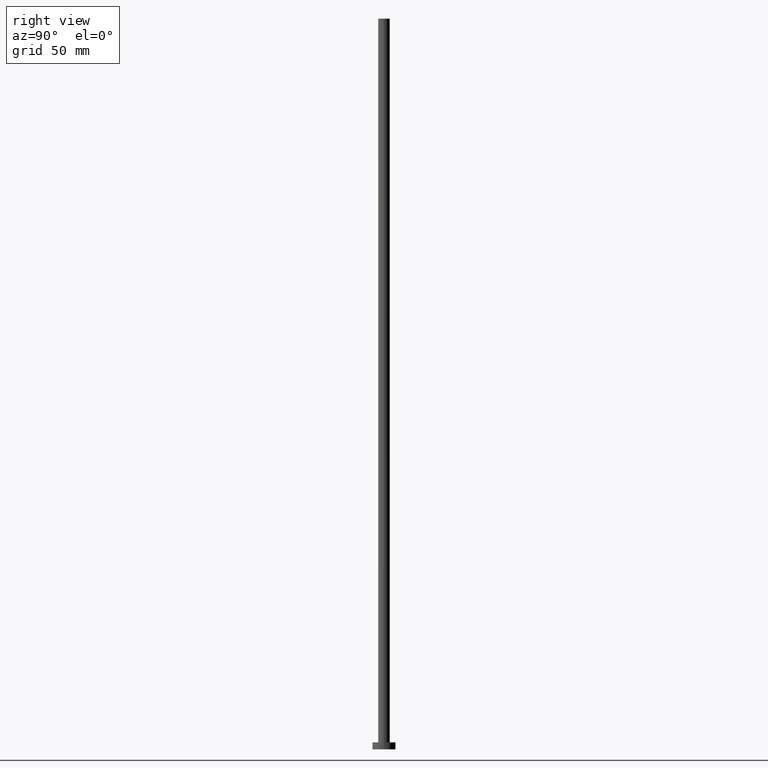
[diagram: clean part render]
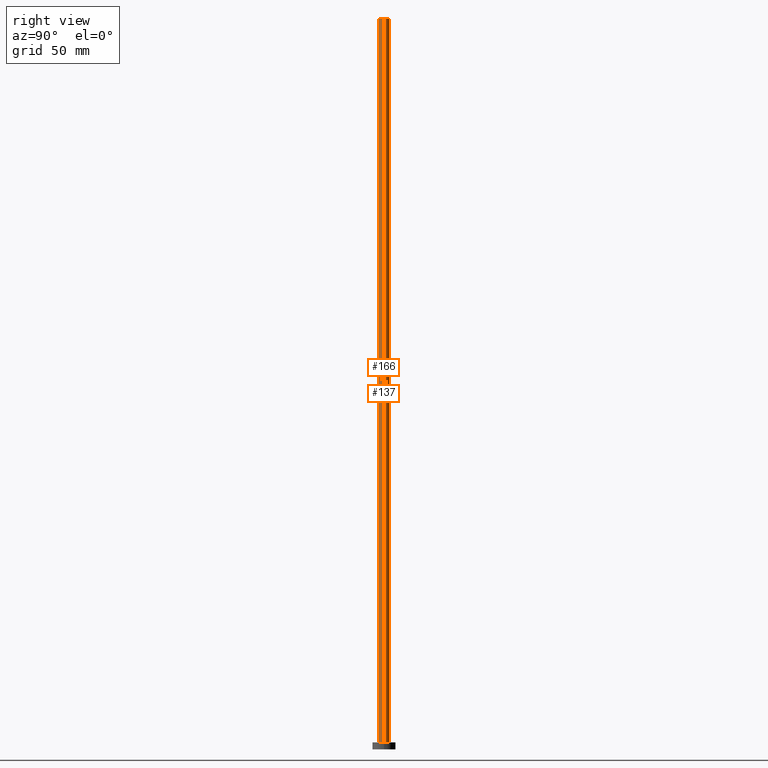
[diagram: same view with one multi-face feature highlighted, each face labeled with its STEP entity id]
A machine part, right view. The highlighted faces form ONE feature: a constant-radius fillet chain: 2 tangent blend faces with common blend radius 2.5 mm. The faces share edges in the B-rep.
Their STEP definitions:
[1] entity #137 (Cylinder):
#1 = EDGE_LOOP ( 'NONE', ( #19, #97, #57, #175 ) ) ;
#3 = AXIS2_PLACEMENT_3D ( 'NONE', #104, #167, #246 ) ;
#18 = EDGE_CURVE ( 'NONE', #59, #178, #112, .T. ) ;
#19 = ORIENTED_EDGE ( 'NONE', *, *, #18, .F. ) ;
#30 = VECTOR ( 'NONE', #192, 1000.000000000000000 ) ;
#32 = EDGE_CURVE ( 'NONE', #178, #234, #126, .T. ) ;
#47 = CARTESIAN_POINT ( 'NONE',  ( 0.000000000000000000, 0.000000000000000000, 315.0000000000000000 ) ) ;
#48 = CARTESIAN_POINT ( 'NONE',  ( 2.500000000000000000, 3.061616997868383141E-16, 315.0000000000000000 ) ) ;
#49 = EDGE_CURVE ( 'NONE', #215, #234, #60, .T. ) ;
#50 = FACE_OUTER_BOUND ( 'NONE', #1, .T. ) ;
#53 = CARTESIAN_POINT ( 'NONE',  ( 0.000000000000000000, 0.000000000000000000, 3.000000000000000000 ) ) ;
#57 = ORIENTED_EDGE ( 'NONE', *, *, #49, .T. ) ;
#59 = VERTEX_POINT ( 'NONE', #48 ) ;
#60 = CIRCLE ( 'NONE', #194, 2.500000000000000000 ) ;
#66 = DIRECTION ( 'NONE',  ( -0.000000000000000000, -0.000000000000000000, -1.000000000000000000 ) ) ;
#67 = DIRECTION ( 'NONE',  ( 1.000000000000000000, 0.000000000000000000, 0.000000000000000000 ) ) ;
#75 = CARTESIAN_POINT ( 'NONE',  ( 2.500000000000000000, 3.061616997868383141E-16, 3.000000000000000000 ) ) ;
#83 = DIRECTION ( 'NONE',  ( 0.000000000000000000, 0.000000000000000000, 1.000000000000000000 ) ) ;
#87 = CYLINDRICAL_SURFACE ( 'NONE', #3, 2.500000000000000000 ) ;
#90 = CARTESIAN_POINT ( 'NONE',  ( -2.500000000000000000, 0.000000000000000000, 3.000000000000000000 ) ) ;
#97 = ORIENTED_EDGE ( 'NONE', *, *, #211, .T. ) ;
#104 = CARTESIAN_POINT ( 'NONE',  ( 0.000000000000000000, 0.000000000000000000, 315.0000000000000000 ) ) ;
#112 = CIRCLE ( 'NONE', #170, 2.500000000000000000 ) ;
#126 = LINE ( 'NONE', #227, #233 ) ;
#137 = ADVANCED_FACE ( 'NONE', ( #50 ), #87, .T. ) ;
#150 = CARTESIAN_POINT ( 'NONE',  ( 2.500000000000000000, 3.061616997868383141E-16, 315.0000000000000000 ) ) ;
#164 = DIRECTION ( 'NONE',  ( 0.000000000000000000, 0.000000000000000000, 1.000000000000000000 ) ) ;
#167 = DIRECTION ( 'NONE',  ( -0.000000000000000000, -0.000000000000000000, -1.000000000000000000 ) ) ;
#170 = AXIS2_PLACEMENT_3D ( 'NONE', #47, #164, #225 ) ;
#171 = LINE ( 'NONE', #150, #30 ) ;
#175 = ORIENTED_EDGE ( 'NONE', *, *, #32, .F. ) ;
#178 = VERTEX_POINT ( 'NONE', #195 ) ;
#192 = DIRECTION ( 'NONE',  ( -0.000000000000000000, -0.000000000000000000, -1.000000000000000000 ) ) ;
#194 = AXIS2_PLACEMENT_3D ( 'NONE', #53, #83, #67 ) ;
#195 = CARTESIAN_POINT ( 'NONE',  ( -2.500000000000000000, 0.000000000000000000, 315.0000000000000000 ) ) ;
#211 = EDGE_CURVE ( 'NONE', #59, #215, #171, .T. ) ;
#215 = VERTEX_POINT ( 'NONE', #75 ) ;
#225 = DIRECTION ( 'NONE',  ( 1.000000000000000000, 0.000000000000000000, 0.000000000000000000 ) ) ;
#227 = CARTESIAN_POINT ( 'NONE',  ( -2.500000000000000000, 0.000000000000000000, 315.0000000000000000 ) ) ;
#233 = VECTOR ( 'NONE', #66, 1000.000000000000000 ) ;
#234 = VERTEX_POINT ( 'NONE', #90 ) ;
#246 = DIRECTION ( 'NONE',  ( -1.000000000000000000, 0.000000000000000000, 0.000000000000000000 ) ) ;
[2] entity #166 (Cylinder):
#7 = DIRECTION ( 'NONE',  ( 0.000000000000000000, 0.000000000000000000, 1.000000000000000000 ) ) ;
#9 = CARTESIAN_POINT ( 'NONE',  ( 0.000000000000000000, 0.000000000000000000, 315.0000000000000000 ) ) ;
#17 = CARTESIAN_POINT ( 'NONE',  ( 0.000000000000000000, 0.000000000000000000, 315.0000000000000000 ) ) ;
#24 = ORIENTED_EDGE ( 'NONE', *, *, #140, .T. ) ;
#27 = AXIS2_PLACEMENT_3D ( 'NONE', #159, #243, #222 ) ;
#30 = VECTOR ( 'NONE', #192, 1000.000000000000000 ) ;
#32 = EDGE_CURVE ( 'NONE', #178, #234, #126, .T. ) ;
#36 = CYLINDRICAL_SURFACE ( 'NONE', #247, 2.500000000000000000 ) ;
#48 = CARTESIAN_POINT ( 'NONE',  ( 2.500000000000000000, 3.061616997868383141E-16, 315.0000000000000000 ) ) ;
#54 = FACE_OUTER_BOUND ( 'NONE', #64, .T. ) ;
#59 = VERTEX_POINT ( 'NONE', #48 ) ;
#64 = EDGE_LOOP ( 'NONE', ( #255, #198, #122, #24 ) ) ;
#66 = DIRECTION ( 'NONE',  ( -0.000000000000000000, -0.000000000000000000, -1.000000000000000000 ) ) ;
#72 = DIRECTION ( 'NONE',  ( -1.000000000000000000, 0.000000000000000000, 0.000000000000000000 ) ) ;
#75 = CARTESIAN_POINT ( 'NONE',  ( 2.500000000000000000, 3.061616997868383141E-16, 3.000000000000000000 ) ) ;
#76 = EDGE_CURVE ( 'NONE', #178, #59, #80, .T. ) ;
#80 = CIRCLE ( 'NONE', #226, 2.500000000000000000 ) ;
#90 = CARTESIAN_POINT ( 'NONE',  ( -2.500000000000000000, 0.000000000000000000, 3.000000000000000000 ) ) ;
#96 = DIRECTION ( 'NONE',  ( -0.000000000000000000, -0.000000000000000000, -1.000000000000000000 ) ) ;
#100 = CIRCLE ( 'NONE', #27, 2.500000000000000000 ) ;
#122 = ORIENTED_EDGE ( 'NONE', *, *, #32, .T. ) ;
#126 = LINE ( 'NONE', #227, #233 ) ;
#140 = EDGE_CURVE ( 'NONE', #234, #215, #100, .T. ) ;
#150 = CARTESIAN_POINT ( 'NONE',  ( 2.500000000000000000, 3.061616997868383141E-16, 315.0000000000000000 ) ) ;
#159 = CARTESIAN_POINT ( 'NONE',  ( 0.000000000000000000, 0.000000000000000000, 3.000000000000000000 ) ) ;
#166 = ADVANCED_FACE ( 'NONE', ( #54 ), #36, .T. ) ;
#171 = LINE ( 'NONE', #150, #30 ) ;
#178 = VERTEX_POINT ( 'NONE', #195 ) ;
#182 = DIRECTION ( 'NONE',  ( 1.000000000000000000, 0.000000000000000000, 0.000000000000000000 ) ) ;
#192 = DIRECTION ( 'NONE',  ( -0.000000000000000000, -0.000000000000000000, -1.000000000000000000 ) ) ;
#195 = CARTESIAN_POINT ( 'NONE',  ( -2.500000000000000000, 0.000000000000000000, 315.0000000000000000 ) ) ;
#198 = ORIENTED_EDGE ( 'NONE', *, *, #76, .F. ) ;
#211 = EDGE_CURVE ( 'NONE', #59, #215, #171, .T. ) ;
#215 = VERTEX_POINT ( 'NONE', #75 ) ;
#222 = DIRECTION ( 'NONE',  ( 1.000000000000000000, 0.000000000000000000, 0.000000000000000000 ) ) ;
#226 = AXIS2_PLACEMENT_3D ( 'NONE', #9, #7, #182 ) ;
#227 = CARTESIAN_POINT ( 'NONE',  ( -2.500000000000000000, 0.000000000000000000, 315.0000000000000000 ) ) ;
#233 = VECTOR ( 'NONE', #66, 1000.000000000000000 ) ;
#234 = VERTEX_POINT ( 'NONE', #90 ) ;
#243 = DIRECTION ( 'NONE',  ( 0.000000000000000000, 0.000000000000000000, 1.000000000000000000 ) ) ;
#247 = AXIS2_PLACEMENT_3D ( 'NONE', #17, #96, #72 ) ;
#255 = ORIENTED_EDGE ( 'NONE', *, *, #211, .F. ) ;